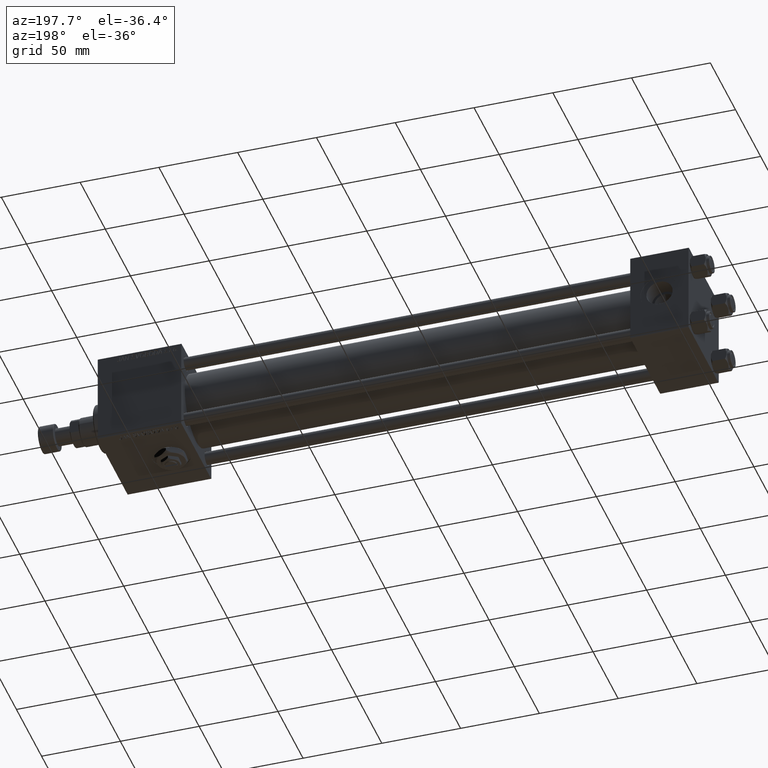
[diagram: clean part render]
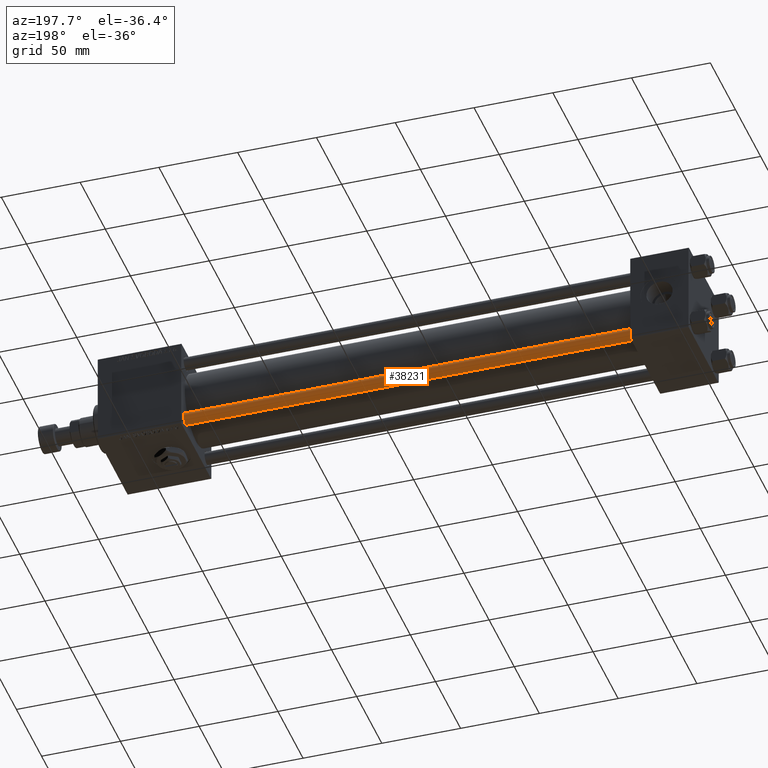
[diagram: same view with one face highlighted and labeled with its STEP entity id]
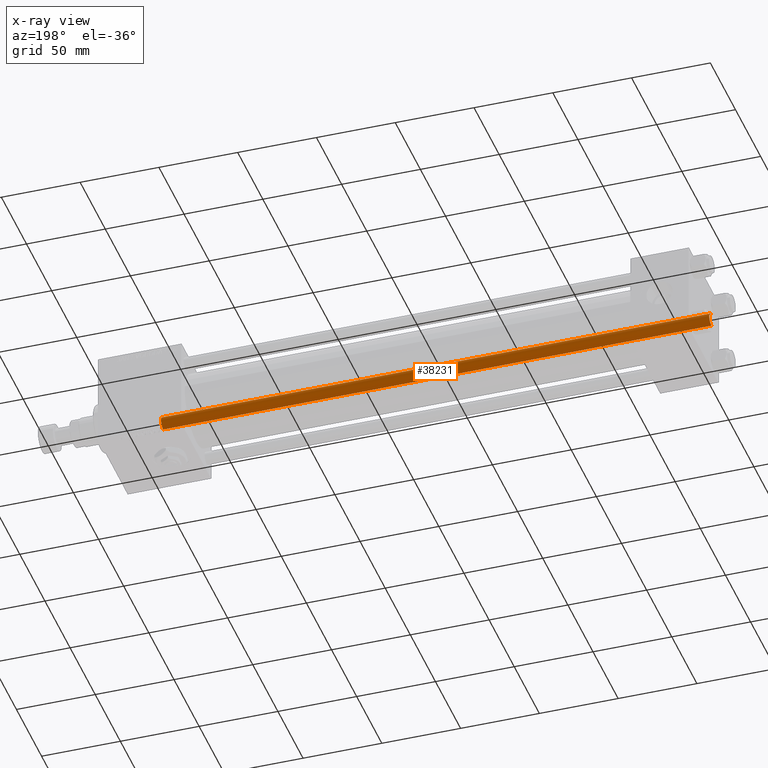
[diagram: x-ray of the same camera — body ghosted, the highlighted face saturated]
A machine part, auxiliary view. The second image highlights one B-rep face of the part: STEP entity #38231.
The next image is the same camera in x-ray: the body ghosted, the highlighted face saturated — about 0% of this face is hidden behind the body in this view.
In plain terms, the highlighted cylindrical surface (edge-blend (fillet) strip) has radius 4 mm, axis along (1, -0, 0).
Its self-contained STEP definition (entity closure, byte-faithful):
#273 = EDGE_CURVE ( 'NONE', #32451, #4126, #30002, .T. ) ;
#735 = CARTESIAN_POINT ( 'NONE',  ( -4.000000000000000000, 0.000000000000000000, 349.0000000000000000 ) ) ;
#1988 = ORIENTED_EDGE ( 'NONE', *, *, #19464, .T. ) ;
#4126 = VERTEX_POINT ( 'NONE', #22937 ) ;
#5226 = FACE_OUTER_BOUND ( 'NONE', #51645, .T. ) ;
#5644 = CARTESIAN_POINT ( 'NONE',  ( 4.000000000000000000, 4.898587196589412829E-16, 0.4999999999999449329 ) ) ;
#11456 = VERTEX_POINT ( 'NONE', #17003 ) ;
#12107 = CARTESIAN_POINT ( 'NONE',  ( 0.000000000000000000, 0.000000000000000000, 348.4999999999999432 ) ) ;
#12154 = CARTESIAN_POINT ( 'NONE',  ( 0.000000000000000000, 0.000000000000000000, 0.4999999999999449329 ) ) ;
#13482 = DIRECTION ( 'NONE',  ( -1.000000000000000000, 0.000000000000000000, 0.000000000000000000 ) ) ;
#13699 = EDGE_CURVE ( 'NONE', #11456, #4126, #24936, .T. ) ;
#13896 = AXIS2_PLACEMENT_3D ( 'NONE', #12154, #28361, #24363 ) ;
#15832 = DIRECTION ( 'NONE',  ( 0.000000000000000000, 0.000000000000000000, -1.000000000000000000 ) ) ;
#16737 = DIRECTION ( 'NONE',  ( -0.000000000000000000, -0.000000000000000000, -1.000000000000000000 ) ) ;
#16978 = DIRECTION ( 'NONE',  ( -0.000000000000000000, -0.000000000000000000, -1.000000000000000000 ) ) ;
#17003 = CARTESIAN_POINT ( 'NONE',  ( -4.000000000000000000, 0.000000000000000000, 348.4999999999999432 ) ) ;
#18866 = CARTESIAN_POINT ( 'NONE',  ( 4.000000000000000000, 4.898587196589412829E-16, 348.4999999999999432 ) ) ;
#19464 = EDGE_CURVE ( 'NONE', #11456, #25793, #32156, .T. ) ;
#20077 = DIRECTION ( 'NONE',  ( 1.000000000000000000, 0.000000000000000000, 0.000000000000000000 ) ) ;
#21043 = ORIENTED_EDGE ( 'NONE', *, *, #43476, .T. ) ;
#22937 = CARTESIAN_POINT ( 'NONE',  ( -4.000000000000000000, 0.000000000000000000, 0.4999999999999449329 ) ) ;
#22940 = DIRECTION ( 'NONE',  ( -0.000000000000000000, -0.000000000000000000, -1.000000000000000000 ) ) ;
#24363 = DIRECTION ( 'NONE',  ( 1.000000000000000000, 0.000000000000000000, 0.000000000000000000 ) ) ;
#24936 = LINE ( 'NONE', #735, #35415 ) ;
#25497 = AXIS2_PLACEMENT_3D ( 'NONE', #49667, #22940, #13482 ) ;
#25685 = VECTOR ( 'NONE', #16737, 1000.000000000000000 ) ;
#25793 = VERTEX_POINT ( 'NONE', #18866 ) ;
#28361 = DIRECTION ( 'NONE',  ( -0.000000000000000000, -0.000000000000000000, 1.000000000000000000 ) ) ;
#30002 = CIRCLE ( 'NONE', #13896, 4.000000000000000000 ) ;
#32156 = CIRCLE ( 'NONE', #40670, 4.000000000000000000 ) ;
#32451 = VERTEX_POINT ( 'NONE', #5644 ) ;
#35415 = VECTOR ( 'NONE', #16978, 1000.000000000000000 ) ;
#36943 = CARTESIAN_POINT ( 'NONE',  ( 4.000000000000000000, 4.898587196589412829E-16, 349.0000000000000000 ) ) ;
#37258 = ORIENTED_EDGE ( 'NONE', *, *, #273, .T. ) ;
#37934 = CYLINDRICAL_SURFACE ( 'NONE', #25497, 4.000000000000000000 ) ;
#38231 = ADVANCED_FACE ( 'NONE', ( #5226 ), #37934, .T. ) ;
#40670 = AXIS2_PLACEMENT_3D ( 'NONE', #12107, #15832, #20077 ) ;
#43476 = EDGE_CURVE ( 'NONE', #25793, #32451, #48143, .T. ) ;
#48143 = LINE ( 'NONE', #36943, #25685 ) ;
#49427 = ORIENTED_EDGE ( 'NONE', *, *, #13699, .F. ) ;
#49667 = CARTESIAN_POINT ( 'NONE',  ( 0.000000000000000000, 0.000000000000000000, 349.0000000000000000 ) ) ;
#51645 = EDGE_LOOP ( 'NONE', ( #1988, #21043, #37258, #49427 ) ) ;